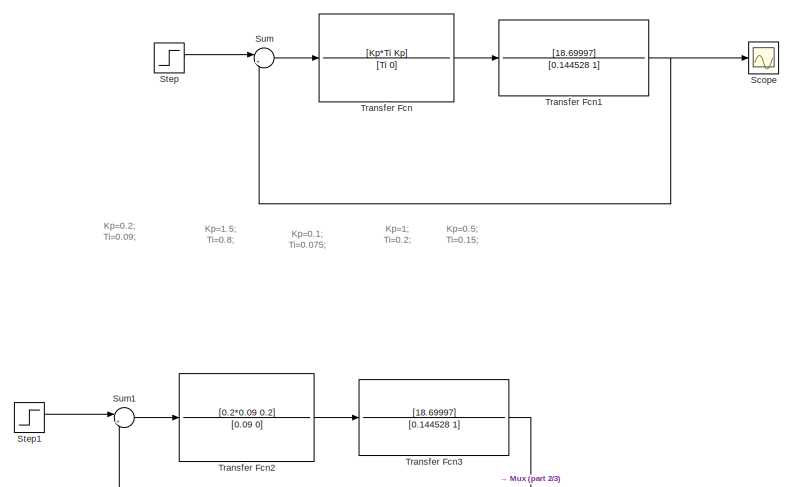
[diagram: root canvas - part 1/3, top left region]
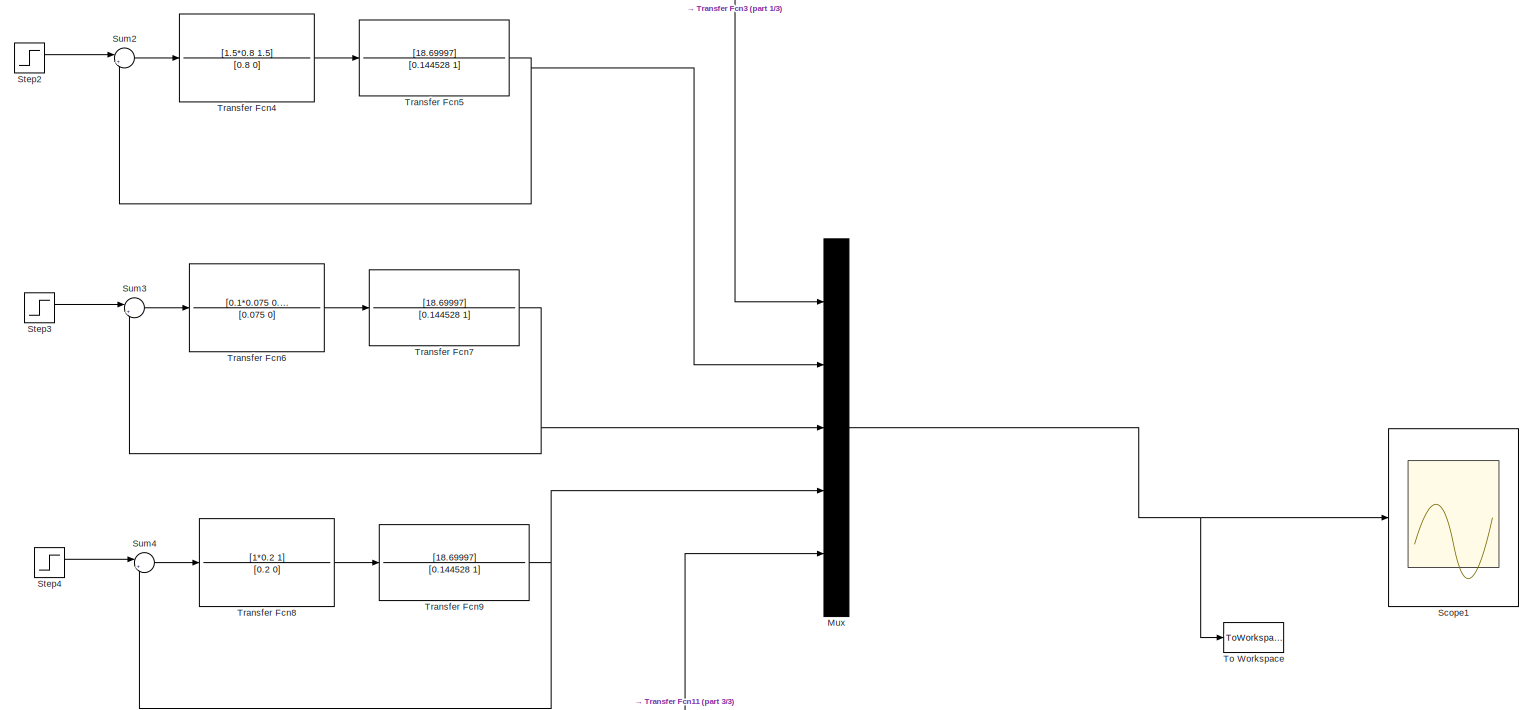
[diagram: root canvas - part 2/3, full width, middle band]
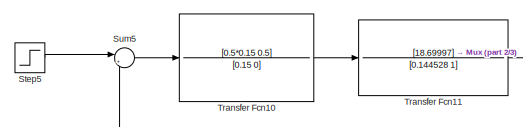
[diagram: root canvas - part 3/3, bottom left region]
MODEL slx_4541b4d2ef35
KIND model
CONFIG AbsTol = auto
CONFIG EnableMultiTasking = off
CONFIG FixedStep = auto
CONFIG MaxStep = auto
CONFIG MinStep = auto
CONFIG RelTol = 1e-3
CONFIG SampleTimeConstraint = Unconstrained
CONFIG Solver = VariableStepAuto
CONFIG SolverName = VariableStepAuto
CONFIG StartTime = 0.0
CONFIG StopTime = 10.0
BLOCK [Mux] Mux
  DisplayOption = bar
  Inputs = 5
  Ports = [5, 1]
BLOCK [Scope] Scope
  NumInputPorts = 1
  Ports = [1]
  ScopeSpecificationString = Simulink.scopes.TimeScopeBlockCfg('CurrentConfiguration', extmgr.ConfigurationSet(extmgr.Configuration('Core','General UI',true),extmgr.Configuration('Core','Source UI',true),extmgr.Configuration('Sources','WiredSimulink',true),extmgr.Configuration('Visuals','Time Domain',true,'SerializedDisplays',{struct('MinYLimReal','-0.125','MaxYLimReal','1.125','YLabelReal','','MinYLimMag','0.00000','MaxYLimM...<+1321ch>
BLOCK [Scope] Scope1
  NumInputPorts = 1
  Ports = [1]
  ScopeSpecificationString = Simulink.scopes.TimeScopeBlockCfg('CurrentConfiguration', extmgr.ConfigurationSet(extmgr.Configuration('Core','General UI',true),extmgr.Configuration('Core','Source UI',true),extmgr.Configuration('Sources','WiredSimulink',true,'DataLoggingVariableName','ScopeData1'),extmgr.Configuration('Visuals','Time Domain',true,'SerializedDisplays',{struct('MinYLimReal','0.87894','MaxYLimReal','1.05555','YLabe...<+1479ch>
BLOCK [Step] Step
  SampleTime = 0
  Time = 0
BLOCK [Step] Step1
  SampleTime = 0
  Time = 0
BLOCK [Step] Step2
  SampleTime = 0
  Time = 0
BLOCK [Step] Step3
  SampleTime = 0
  Time = 0
BLOCK [Step] Step4
  SampleTime = 0
  Time = 0
BLOCK [Step] Step5
  SampleTime = 0
  Time = 0
BLOCK [Sum] Sum
  IconShape = round
  InputSameDT = off
  Inputs = |+-
  OutDataTypeStr = Inherit: Inherit via internal rule
  Ports = [2, 1]
  SaturateOnIntegerOverflow = off
BLOCK [Sum] Sum1
  IconShape = round
  InputSameDT = off
  Inputs = |+-
  OutDataTypeStr = Inherit: Inherit via internal rule
  Ports = [2, 1]
  SaturateOnIntegerOverflow = off
BLOCK [Sum] Sum2
  IconShape = round
  InputSameDT = off
  Inputs = |+-
  OutDataTypeStr = Inherit: Inherit via internal rule
  Ports = [2, 1]
  SaturateOnIntegerOverflow = off
BLOCK [Sum] Sum3
  IconShape = round
  InputSameDT = off
  Inputs = |+-
  OutDataTypeStr = Inherit: Inherit via internal rule
  Ports = [2, 1]
  SaturateOnIntegerOverflow = off
BLOCK [Sum] Sum4
  IconShape = round
  InputSameDT = off
  Inputs = |+-
  OutDataTypeStr = Inherit: Inherit via internal rule
  Ports = [2, 1]
  SaturateOnIntegerOverflow = off
BLOCK [Sum] Sum5
  IconShape = round
  InputSameDT = off
  Inputs = |+-
  OutDataTypeStr = Inherit: Inherit via internal rule
  Ports = [2, 1]
  SaturateOnIntegerOverflow = off
BLOCK [ToWorkspace] To Workspace
  FixptAsFi = on
  MaxDataPoints = inf
  Ports = [1]
  SampleTime = -1
  Save2DSignal = 3-D array (concatenate along third dimension)
  VariableName = izlaz
BLOCK [TransferFcn] Transfer Fcn
  Denominator = [Ti 0]
  Numerator = [Kp*Ti Kp]
BLOCK [TransferFcn] Transfer Fcn1
  Denominator = [0.144528 1]
  Numerator = [18.69997]
BLOCK [TransferFcn] Transfer Fcn10
  Denominator = [0.15 0]
  Numerator = [0.5*0.15 0.5]
BLOCK [TransferFcn] Transfer Fcn11
  Denominator = [0.144528 1]
  Numerator = [18.69997]
BLOCK [TransferFcn] Transfer Fcn2
  Denominator = [0.09 0]
  Numerator = [0.2*0.09 0.2]
BLOCK [TransferFcn] Transfer Fcn3
  Denominator = [0.144528 1]
  Numerator = [18.69997]
BLOCK [TransferFcn] Transfer Fcn4
  Denominator = [0.8 0]
  Numerator = [1.5*0.8 1.5]
BLOCK [TransferFcn] Transfer Fcn5
  Denominator = [0.144528 1]
  Numerator = [18.69997]
BLOCK [TransferFcn] Transfer Fcn6
  Denominator = [0.075 0]
  Numerator = [0.1*0.075 0.1]
BLOCK [TransferFcn] Transfer Fcn7
  Denominator = [0.144528 1]
  Numerator = [18.69997]
BLOCK [TransferFcn] Transfer Fcn8
  Denominator = [0.2 0]
  Numerator = [1*0.2 1]
BLOCK [TransferFcn] Transfer Fcn9
  Denominator = [0.144528 1]
  Numerator = [18.69997]
ANNOTATION (root): Kp=0.1; Ti=0.075;
ANNOTATION (root): Kp=0.2; Ti=0.09;
ANNOTATION (root): Kp=0.5; Ti=0.15;
ANNOTATION (root): Kp=1.5; Ti=0.8;
ANNOTATION (root): Kp=1; Ti=0.2;
NET Mux:1 -> Scope1:1, To Workspace:1
LINE Step1:1 -> Sum1:1
LINE Step2:1 -> Sum2:1
LINE Step3:1 -> Sum3:1
LINE Step4:1 -> Sum4:1
LINE Step5:1 -> Sum5:1
LINE Step:1 -> Sum:1
LINE Sum1:1 -> Transfer Fcn2:1
LINE Sum2:1 -> Transfer Fcn4:1
LINE Sum3:1 -> Transfer Fcn6:1
LINE Sum4:1 -> Transfer Fcn8:1
LINE Sum5:1 -> Transfer Fcn10:1
LINE Sum:1 -> Transfer Fcn:1
LINE Transfer Fcn10:1 -> Transfer Fcn11:1
NET Transfer Fcn11:1 -> Mux:5, Sum5:2
NET Transfer Fcn1:1 -> Scope:1, Sum:2
LINE Transfer Fcn2:1 -> Transfer Fcn3:1
NET Transfer Fcn3:1 -> Mux:1, Sum1:2
LINE Transfer Fcn4:1 -> Transfer Fcn5:1
NET Transfer Fcn5:1 -> Mux:2, Sum2:2
LINE Transfer Fcn6:1 -> Transfer Fcn7:1
NET Transfer Fcn7:1 -> Mux:3, Sum3:2
LINE Transfer Fcn8:1 -> Transfer Fcn9:1
NET Transfer Fcn9:1 -> Mux:4, Sum4:2
LINE Transfer Fcn:1 -> Transfer Fcn1:1
note: NET lines group one-source signal fan-out (src -> all destinations, sorted); 1:1 wires keep LINE
